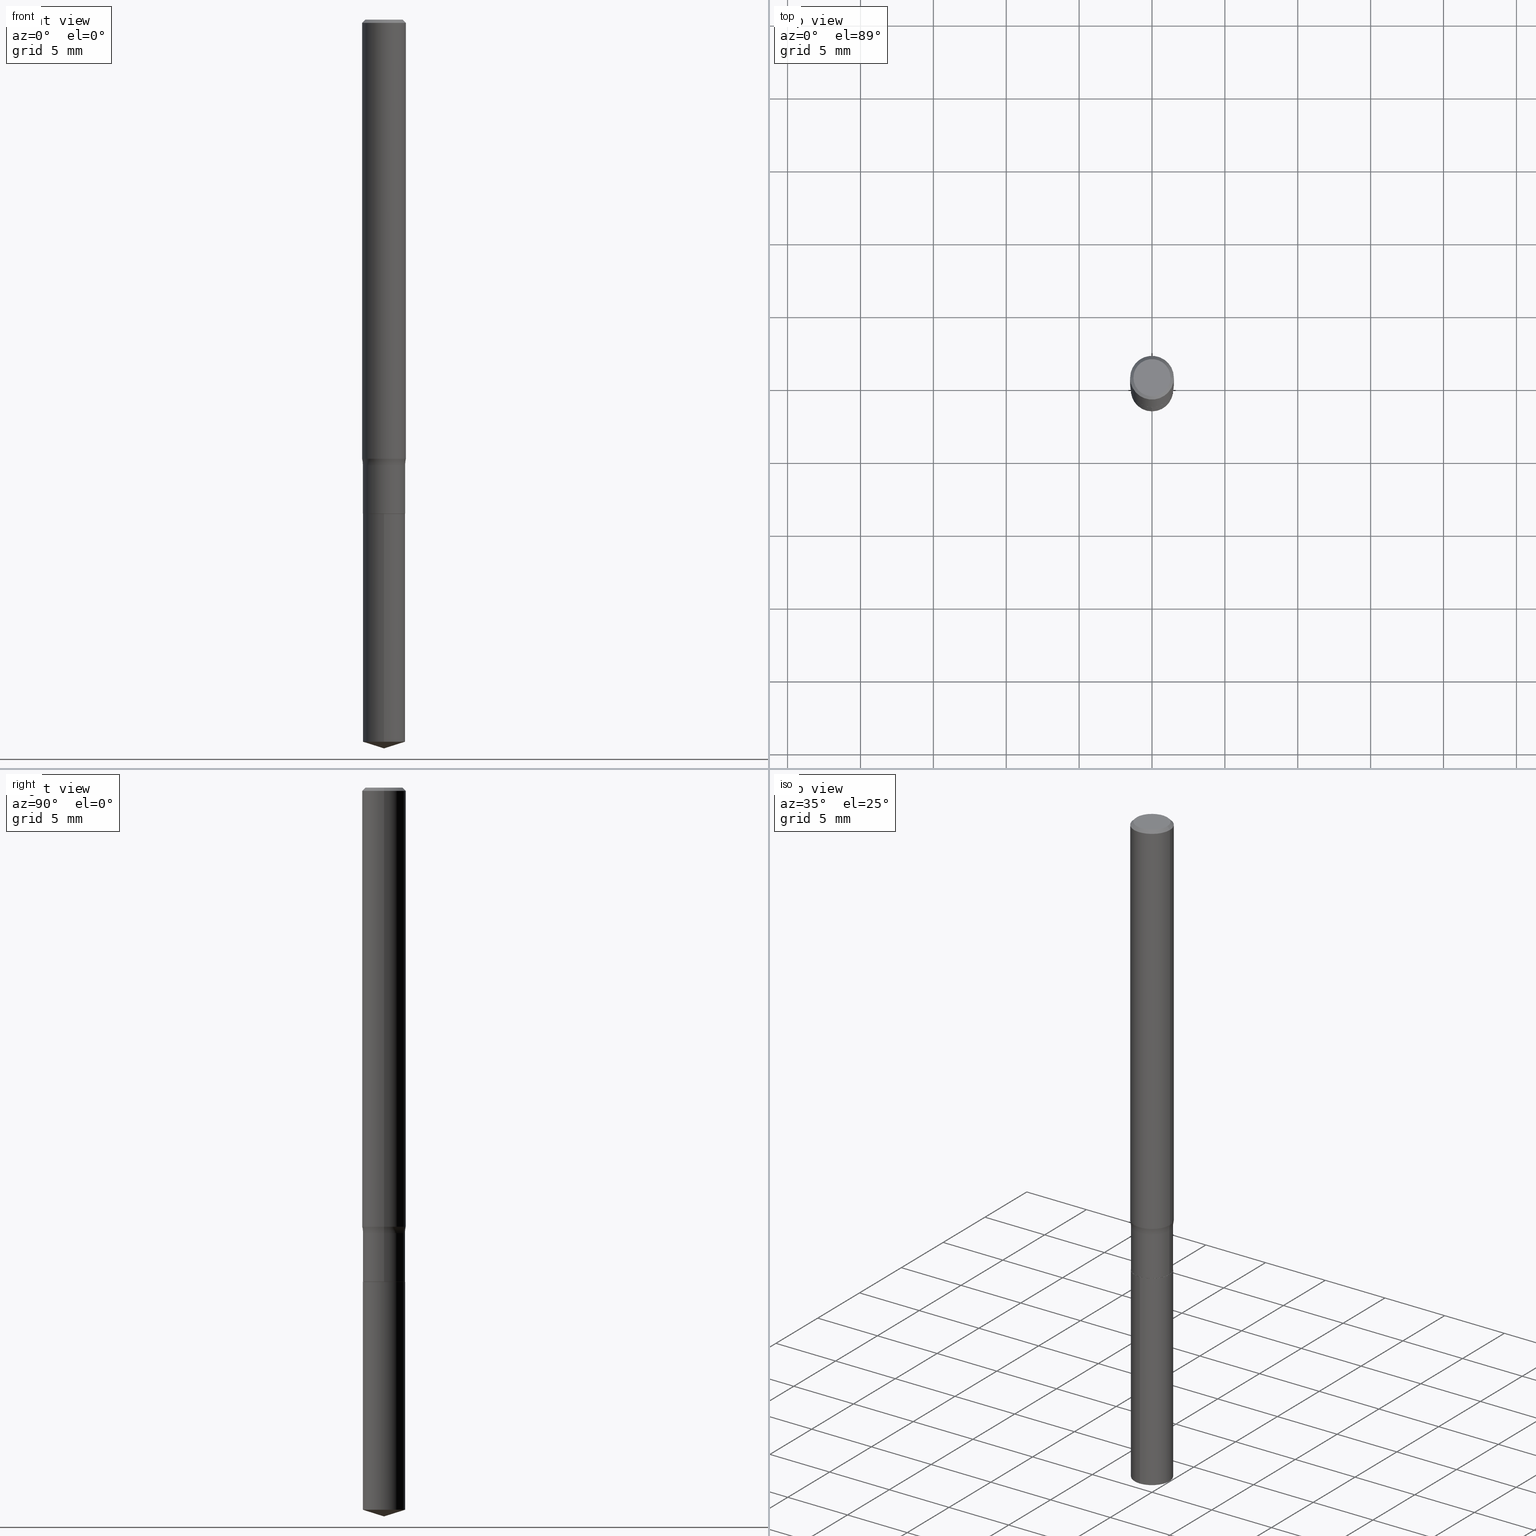
[diagram: canonical four-view strip — front | top / right | iso, engineering-drawing reading convention]
A machine part, canonical four-view strip (front | top / right | iso — engineering-drawing reading convention). The complete STEP part file that produces these views, byte-faithful:
ISO-10303-21;
HEADER;
FILE_DESCRIPTION (( 'STEP AP203' ),
    '1' );
FILE_NAME ('64532.STEP',
    '2024-04-19T15:48:34',
    ( '' ),
    ( '' ),
    'SwSTEP 2.0',
    'SolidWorks 2023',
    '' );
FILE_SCHEMA (( 'CONFIG_CONTROL_DESIGN' ));
ENDSEC;

DATA;
#1 = DIRECTION ( 'NONE',  ( 1.000000000000000000, -6.982962677686271444E-15, 0.000000000000000000 ) ) ;
#2 = MANIFOLD_SOLID_BREP ( 'Body-Move/Copy2[2]', #317 ) ;
#3 = VERTEX_POINT ( 'NONE', #91 ) ;
#4 = DIRECTION ( 'NONE',  ( -2.445468806185136597E-29, 3.491481338843145583E-15, 1.000000000000000000 ) ) ;
#5 = CARTESIAN_POINT ( 'NONE',  ( 3.262744481212208605E-29, -4.658334402284523139E-15, -1.334199999999999608 ) ) ;
#6 = ORIENTED_EDGE ( 'NONE', *, *, #129, .T. ) ;
#7 = AXIS2_PLACEMENT_3D ( 'NONE', #190, #169, #411 ) ;
#8 = CARTESIAN_POINT ( 'NONE',  ( 3.263967215615300846E-29, -4.660080142953945431E-15, -1.334699999999999775 ) ) ;
#9 = EDGE_CURVE ( 'NONE', #193, #35, #310, .T. ) ;
#10 = MANIFOLD_SOLID_BREP ( 'Body-Move/Copy2[1]', #31 ) ;
#11 = COORDINATED_UNIVERSAL_TIME_OFFSET ( 5, 0, .BEHIND. ) ;
#12 = ORIENTED_EDGE ( 'NONE', *, *, #107, .F. ) ;
#13 = EDGE_CURVE ( 'NONE', #257, #403, #395, .T. ) ;
#14 = CIRCLE ( 'NONE', #482, 0.05904999999999999832 ) ;
#15 = CIRCLE ( 'NONE', #161, 0.05659999999999999060 ) ;
#16 = PERSON_AND_ORGANIZATION ( #55, #329 ) ;
#17 = EDGE_LOOP ( 'NONE', ( #479, #110, #386, #431 ) ) ;
#18 = CARTESIAN_POINT ( 'NONE',  ( -3.987271688958379871E-16, -0.05710000000000679116, -1.950496439155009920 ) ) ;
#19 = CONICAL_SURFACE ( 'NONE', #371, 0.05904999999999999832, 0.7853981633974449483 ) ;
#20 = AXIS2_PLACEMENT_3D ( 'NONE', #133, #447, #210 ) ;
#21 = CARTESIAN_POINT ( 'NONE',  ( 4.057199021190649179E-16, 0.05709999999999533504, -1.334699999999999998 ) ) ;
#22 = PLANE ( 'NONE',  #484 ) ;
#23 = FACE_OUTER_BOUND ( 'NONE', #126, .T. ) ;
#24 = CARTESIAN_POINT ( 'NONE',  ( 0.05019250000000000100, -3.901918742401799672E-16, -3.591276738473711219E-19 ) ) ;
#25 = FACE_OUTER_BOUND ( 'NONE', #168, .T. ) ;
#26 = ORIENTED_EDGE ( 'NONE', *, *, #159, .F. ) ;
#27 = DIRECTION ( 'NONE',  ( -2.445468806185136877E-29, 3.491481338843145188E-15, 1.000000000000000000 ) ) ;
#28 = VERTEX_POINT ( 'NONE', #134 ) ;
#29 = DIRECTION ( 'NONE',  ( -2.445468806185136597E-29, 3.491481338843145583E-15, 1.000000000000000000 ) ) ;
#30 = EDGE_CURVE ( 'NONE', #460, #367, #204, .T. ) ;
#31 = CLOSED_SHELL ( 'NONE', ( #292, #195, #189, #390, #424 ) ) ;
#32 = AXIS2_PLACEMENT_3D ( 'NONE', #33, #178, #376 ) ;
#33 = CARTESIAN_POINT ( 'NONE',  ( 3.263967215615300286E-29, -4.660080142953944642E-15, -1.334699999999999553 ) ) ;
#34 = APPROVAL_PERSON_ORGANIZATION ( #217, #421, #49 ) ;
#35 = VERTEX_POINT ( 'NONE', #442 ) ;
#36 = FACE_OUTER_BOUND ( 'NONE', #457, .T. ) ;
#37 = DIRECTION ( 'NONE',  ( -2.445496028877088501E-29, 3.491442354398851072E-15, 1.000000000000000000 ) ) ;
#38 = VERTEX_POINT ( 'NONE', #21 ) ;
#39 = MECHANICAL_CONTEXT ( 'NONE', #191, 'mechanical' ) ;
#40 = ORIENTED_EDGE ( 'NONE', *, *, #48, .T. ) ;
#41 = EDGE_CURVE ( 'NONE', #250, #35, #97, .T. ) ;
#42 = AXIS2_PLACEMENT_3D ( 'NONE', #265, #72, #158 ) ;
#43 = CC_DESIGN_DATE_AND_TIME_ASSIGNMENT ( #384, #323, ( #406 ) ) ;
#44 = DIRECTION ( 'NONE',  ( 1.000000000000000000, -6.982962677686269866E-15, 0.000000000000000000 ) ) ;
#45 = CARTESIAN_POINT ( 'NONE',  ( -0.05905000000000007465, 4.195754854663396902E-16, -2.904631170795525395E-30 ) ) ;
#46 = DIRECTION ( 'NONE',  ( -0.7071067811865451302, 2.468850131082231817E-15, -0.7071067811865499042 ) ) ;
#47 =( NAMED_UNIT ( * ) PLANE_ANGLE_UNIT ( ) SI_UNIT ( $, .RADIAN. ) );
#48 = EDGE_CURVE ( 'NONE', #343, #490, #174, .T. ) ;
#49 = APPROVAL_ROLE ( '' ) ;
#50 = ORIENTED_EDGE ( 'NONE', *, *, #166, .T. ) ;
#51 = CIRCLE ( 'NONE', #114, 0.05905000000000015098 ) ;
#52 = LOCAL_TIME ( 11, 48, 34.00000000000000000, #11 ) ;
#53 = PERSON_AND_ORGANIZATION ( #55, #329 ) ;
#54 = ORIENTED_EDGE ( 'NONE', *, *, #166, .F. ) ;
#55 = PERSON ( 'UNSPECIFIED', 'UNSPECIFIED', 'UNSPECIFIED', ('UNSPECIFIED'), ('UNSPECIFIED'), ('UNSPECIFIED') ) ;
#56 = COORDINATED_UNIVERSAL_TIME_OFFSET ( 5, 0, .BEHIND. ) ;
#57 = ORIENTED_EDGE ( 'NONE', *, *, #282, .T. ) ;
#58 = EDGE_CURVE ( 'NONE', #198, #3, #131, .T. ) ;
#59 = CARTESIAN_POINT ( 'NONE',  ( 8.782355238379090331E-48, -1.253887571509286098E-33, -3.591276738499609681E-19 ) ) ;
#60 = VECTOR ( 'NONE', #138, 39.37007874015748854 ) ;
#61 = AXIS2_PLACEMENT_3D ( 'NONE', #298, #102, #258 ) ;
#62 = CARTESIAN_POINT ( 'NONE',  ( 3.263967215615300846E-29, -4.660080142953945431E-15, -1.334699999999999775 ) ) ;
#63 = DIRECTION ( 'NONE',  ( -2.445468806185136877E-29, 3.491481338843145188E-15, 1.000000000000000000 ) ) ;
#64 = EDGE_CURVE ( 'NONE', #28, #460, #319, .T. ) ;
#65 = CALENDAR_DATE ( 2024, 19, 4 ) ;
#66 = AXIS2_PLACEMENT_3D ( 'NONE', #118, #81, #1 ) ;
#67 = LINE ( 'NONE', #222, #405 ) ;
#68 = CARTESIAN_POINT ( 'NONE',  ( -0.1350999999999999701, -3.241705407151946692E-15, -1.203400000000000025 ) ) ;
#69 = ORIENTED_EDGE ( 'NONE', *, *, #151, .T. ) ;
#70 = ADVANCED_FACE ( 'NONE', ( #77 ), #106, .T. ) ;
#71 = DIRECTION ( 'NONE',  ( -0.7071067811866138531, 7.493145998870593974E-15, 0.7071067811864811814 ) ) ;
#72 = DIRECTION ( 'NONE',  ( 2.445468806185136597E-29, -3.491481338843145583E-15, -1.000000000000000000 ) ) ;
#73 = VECTOR ( 'NONE', #197, 39.37007874015748143 ) ;
#74 = CYLINDRICAL_SURFACE ( 'NONE', #294, 0.05905000000000007465 ) ;
#75 = LOCAL_TIME ( 11, 48, 34.00000000000000000, #130 ) ;
#76 = CC_DESIGN_DATE_AND_TIME_ASSIGNMENT ( #244, #128, ( #207 ) ) ;
#77 = FACE_OUTER_BOUND ( 'NONE', #177, .T. ) ;
#78 = ORIENTED_EDGE ( 'NONE', *, *, #463, .T. ) ;
#79 = ORIENTED_EDGE ( 'NONE', *, *, #377, .F. ) ;
#80 = ORIENTED_EDGE ( 'NONE', *, *, #227, .F. ) ;
#81 = DIRECTION ( 'NONE',  ( -2.445468806185136597E-29, 3.491481338843145583E-15, 1.000000000000000000 ) ) ;
#82 = ORIENTED_EDGE ( 'NONE', *, *, #368, .T. ) ;
#83 = CONICAL_SURFACE ( 'NONE', #434, 0.05659999999999999060, 0.7853981633975420928 ) ;
#84 = DIRECTION ( 'NONE',  ( -6.982962677686266711E-15, -1.000000000000000000, 3.491481338843145583E-15 ) ) ;
#85 = ADVANCED_FACE ( 'NONE', ( #109 ), #74, .T. ) ;
#86 = DIRECTION ( 'NONE',  ( 1.000000000000000000, -6.982962677686269077E-15, 0.000000000000000000 ) ) ;
#87 = DIRECTION ( 'NONE',  ( -6.982962677686265133E-15, -1.000000000000000000, 4.784322230585399479E-15 ) ) ;
#88 = EDGE_LOOP ( 'NONE', ( #365, #221, #238, #429 ) ) ;
#89 = LOCAL_TIME ( 11, 48, 34.00000000000000000, #286 ) ;
#90 = DIRECTION ( 'NONE',  ( -2.445496028877088781E-29, 3.491442354398851072E-15, 1.000000000000000000 ) ) ;
#91 = CARTESIAN_POINT ( 'NONE',  ( -3.987271688958531234E-16, -0.05710000000000465398, -1.334699999999999553 ) ) ;
#92 = PERSON_AND_ORGANIZATION ( #55, #329 ) ;
#93 = CONICAL_SURFACE ( 'NONE', #32, 0.05659999999999999060, 0.7853981633975420928 ) ;
#94 = AXIS2_PLACEMENT_3D ( 'NONE', #394, #84, #44 ) ;
#95 = APPROVAL_STATUS ( 'not_yet_approved' ) ;
#96 = PERSON_AND_ORGANIZATION_ROLE ( 'creator' ) ;
#97 = LINE ( 'NONE', #253, #451 ) ;
#98 = EDGE_CURVE ( 'NONE', #403, #257, #122, .T. ) ;
#99 = PERSON_AND_ORGANIZATION ( #55, #329 ) ;
#100 = EDGE_LOOP ( 'NONE', ( #80, #469, #440, #226 ) ) ;
#101 = EDGE_LOOP ( 'NONE', ( #202, #350, #276, #115 ) ) ;
#102 = DIRECTION ( 'NONE',  ( -2.438088387897960049E-29, 3.491481338843145188E-15, 1.000000000000000000 ) ) ;
#103 = CARTESIAN_POINT ( 'NONE',  ( 0.000000000000000000, 0.000000000000000000, 0.000000000000000000 ) ) ;
#104 = CARTESIAN_POINT ( 'NONE',  ( 2.942877161363193285E-29, -4.201648643163841239E-15, -1.203400000000000025 ) ) ;
#105 = APPROVAL_PERSON_ORGANIZATION ( #53, #272, #360 ) ;
#106 = CYLINDRICAL_SURFACE ( 'NONE', #171, 0.05709999999999997716 ) ;
#107 = EDGE_CURVE ( 'NONE', #35, #354, #67, .T. ) ;
#108 = CARTESIAN_POINT ( 'NONE',  ( 0.000000000000000000, 0.000000000000000000, 0.000000000000000000 ) ) ;
#109 = FACE_OUTER_BOUND ( 'NONE', #100, .T. ) ;
#110 = ORIENTED_EDGE ( 'NONE', *, *, #214, .T. ) ;
#111 = DIRECTION ( 'NONE',  ( 1.000000000000000000, -6.982962677686269077E-15, 0.000000000000000000 ) ) ;
#112 = DESIGN_CONTEXT ( 'detailed design', #180, 'design' ) ;
#113 = DIRECTION ( 'NONE',  ( 1.000000000000000000, -6.982962677686265922E-15, 4.883557194083112901E-29 ) ) ;
#114 = AXIS2_PLACEMENT_3D ( 'NONE', #121, #311, #240 ) ;
#115 = ORIENTED_EDGE ( 'NONE', *, *, #328, .F. ) ;
#116 = ORIENTED_EDGE ( 'NONE', *, *, #98, .T. ) ;
#117 = EDGE_LOOP ( 'NONE', ( #380, #69, #362, #262 ) ) ;
#118 = CARTESIAN_POINT ( 'NONE',  ( 2.942877161363193285E-29, -4.201648643163841239E-15, -1.203400000000000025 ) ) ;
#119 = DIRECTION ( 'NONE',  ( 1.000000000000000000, -6.982962677686266711E-15, 0.000000000000000000 ) ) ;
#120 = CARTESIAN_POINT ( 'NONE',  ( 4.769894962165531055E-29, -6.810097912307744286E-15, -1.950496439155010142 ) ) ;
#121 = CARTESIAN_POINT ( 'NONE',  ( 2.900492347091025857E-29, -4.141134361522908113E-15, -1.186068020886233754 ) ) ;
#122 = CIRCLE ( 'NONE', #251, 0.05019250000000000100 ) ;
#123 = APPROVAL ( #167, 'UNSPECIFIED' ) ;
#124 = LOCAL_TIME ( 11, 48, 34.00000000000000000, #56 ) ;
#125 = AXIS2_PLACEMENT_3D ( 'NONE', #269, #229, #391 ) ;
#126 = EDGE_LOOP ( 'NONE', ( #283, #116 ) ) ;
#127 = FACE_OUTER_BOUND ( 'NONE', #345, .T. ) ;
#128 = DATE_TIME_ROLE ( 'creation_date' ) ;
#129 = EDGE_CURVE ( 'NONE', #38, #3, #400, .T. ) ;
#130 = COORDINATED_UNIVERSAL_TIME_OFFSET ( 5, 0, .BEHIND. ) ;
#131 = LINE ( 'NONE', #280, #132 ) ;
#132 = VECTOR ( 'NONE', #90, 39.37007874015748143 ) ;
#133 = CARTESIAN_POINT ( 'NONE',  ( 0.000000000000000000, 0.000000000000000000, 0.000000000000000000 ) ) ;
#134 = CARTESIAN_POINT ( 'NONE',  ( -0.05905000000000015098, -3.721558876056567831E-15, -1.186068020886233754 ) ) ;
#135 = ADVANCED_FACE ( 'NONE', ( #219 ), #93, .T. ) ;
#136 = AXIS2_PLACEMENT_3D ( 'NONE', #225, #37, #185 ) ;
#137 =( LENGTH_UNIT ( ) NAMED_UNIT ( * ) SI_UNIT ( $, .METRE. ) );
#138 = DIRECTION ( 'NONE',  ( 6.776566513254254982E-15, 0.9537169507482283759, 0.3007057995042682341 ) ) ;
#139 = FACE_OUTER_BOUND ( 'NONE', #302, .T. ) ;
#140 = PERSON_AND_ORGANIZATION ( #55, #329 ) ;
#141 = FACE_OUTER_BOUND ( 'NONE', #17, .T. ) ;
#142 = ADVANCED_FACE ( 'NONE', ( #23 ), #181, .F. ) ;
#143 = AXIS2_PLACEMENT_3D ( 'NONE', #481, #264, #389 ) ;
#144 =( GEOMETRIC_REPRESENTATION_CONTEXT ( 3 ) GLOBAL_UNCERTAINTY_ASSIGNED_CONTEXT ( ( #285 ) ) GLOBAL_UNIT_ASSIGNED_CONTEXT ( ( #334, #47, #437 ) ) REPRESENTATION_CONTEXT ( 'NONE', 'WORKASPACE' ) );
#145 = DIRECTION ( 'NONE',  ( -6.982962677686265133E-15, -1.000000000000000000, 4.784322230585399479E-15 ) ) ;
#146 = DIRECTION ( 'NONE',  ( -1.000000000000000000, 7.105427357600997126E-15, 0.000000000000000000 ) ) ;
#147 = EDGE_LOOP ( 'NONE', ( #393, #40, #246 ) ) ;
#148 = DIRECTION ( 'NONE',  ( -2.445468806185136597E-29, 3.491481338843145583E-15, 1.000000000000000000 ) ) ;
#149 = CARTESIAN_POINT ( 'NONE',  ( -0.05709999999999997716, 4.057199021190170439E-16, -2.808711936535549889E-30 ) ) ;
#150 = DIRECTION ( 'NONE',  ( 1.000000000000000000, -6.982962677686266711E-15, 4.876176775795935793E-29 ) ) ;
#151 = EDGE_CURVE ( 'NONE', #233, #193, #297, .T. ) ;
#152 = CIRCLE ( 'NONE', #245, 0.05709999999999997022 ) ;
#153 = DIRECTION ( 'NONE',  ( -6.982962677686266711E-15, -1.000000000000000000, 3.500519750498718631E-15 ) ) ;
#154 = CIRCLE ( 'NONE', #228, 0.07800000000000001377 ) ;
#155 = ORIENTED_EDGE ( 'NONE', *, *, #256, .T. ) ;
#156 = DIRECTION ( 'NONE',  ( -1.000000000000000000, 6.982962677686266711E-15, 0.000000000000000000 ) ) ;
#157 = DIRECTION ( 'NONE',  ( -2.445496028877088501E-29, 3.491442354398851072E-15, 1.000000000000000000 ) ) ;
#158 = DIRECTION ( 'NONE',  ( -1.000000000000000000, 6.982962677686266711E-15, 0.000000000000000000 ) ) ;
#159 = EDGE_CURVE ( 'NONE', #490, #198, #160, .T. ) ;
#160 = CIRCLE ( 'NONE', #136, 0.05709999999999999798 ) ;
#161 = AXIS2_PLACEMENT_3D ( 'NONE', #355, #4, #86 ) ;
#162 = DIRECTION ( 'NONE',  ( 2.445468806185136597E-29, -3.491481338843145583E-15, -1.000000000000000000 ) ) ;
#163 = CC_DESIGN_PERSON_AND_ORGANIZATION_ASSIGNMENT ( #321, #363, ( #194 ) ) ;
#164 = AXIS2_PLACEMENT_3D ( 'NONE', #344, #454, #111 ) ;
#165 = CARTESIAN_POINT ( 'NONE',  ( 0.05905000000000007465, -4.123439461173745750E-16, 2.879382386107504074E-30 ) ) ;
#166 = EDGE_CURVE ( 'NONE', #233, #250, #415, .T. ) ;
#167 = APPROVAL_STATUS ( 'not_yet_approved' ) ;
#168 = EDGE_LOOP ( 'NONE', ( #435, #273, #82, #339 ) ) ;
#169 = DIRECTION ( 'NONE',  ( -2.445496028877088501E-29, 3.491442354398851072E-15, 1.000000000000000000 ) ) ;
#170 = DIRECTION ( 'NONE',  ( 1.000000000000000000, -6.982962677686269077E-15, 0.000000000000000000 ) ) ;
#171 = AXIS2_PLACEMENT_3D ( 'NONE', #103, #486, #150 ) ;
#172 = PRODUCT_DEFINITION_FORMATION_WITH_SPECIFIED_SOURCE ( 'ANY', '', #194, .NOT_KNOWN. ) ;
#173 = DIRECTION ( 'NONE',  ( -2.445496028877088501E-29, 3.491442354398851072E-15, 1.000000000000000000 ) ) ;
#174 = LINE ( 'NONE', #369, #60 ) ;
#175 = CC_DESIGN_PERSON_AND_ORGANIZATION_ASSIGNMENT ( #99, #332, ( #172 ) ) ;
#176 = FACE_OUTER_BOUND ( 'NONE', #412, .T. ) ;
#177 = EDGE_LOOP ( 'NONE', ( #57, #78, #382, #12 ) ) ;
#178 = DIRECTION ( 'NONE',  ( -2.445468806185136597E-29, 3.491481338843145583E-15, 1.000000000000000000 ) ) ;
#179 = CARTESIAN_POINT ( 'NONE',  ( -0.05904999999999999832, -1.666454593274514930E-15, -0.008857500000000059770 ) ) ;
#180 = APPLICATION_CONTEXT ( 'configuration controlled 3d designs of mechanical parts and assemblies' ) ;
#181 = PLANE ( 'NONE',  #143 ) ;
#182 = CARTESIAN_POINT ( 'NONE',  ( 3.263967215615300846E-29, -4.660080142953945431E-15, -1.334699999999999775 ) ) ;
#183 = VECTOR ( 'NONE', #63, 39.37007874015748143 ) ;
#184 = CIRCLE ( 'NONE', #372, 0.05709999999999999798 ) ;
#185 = DIRECTION ( 'NONE',  ( -6.982962677686265133E-15, -1.000000000000000000, 4.784322230585399479E-15 ) ) ;
#186 = EDGE_LOOP ( 'NONE', ( #223, #6 ) ) ;
#187 = LINE ( 'NONE', #149, #342 ) ;
#188 = CARTESIAN_POINT ( 'NONE',  ( 3.263967215615300846E-29, -4.660080142953945431E-15, -1.334699999999999775 ) ) ;
#189 = ADVANCED_FACE ( 'NONE', ( #346 ), #260, .T. ) ;
#190 = CARTESIAN_POINT ( 'NONE',  ( -9.146544861691581560E-28, 1.305854041022316491E-13, 37.40157874015748263 ) ) ;
#191 = APPLICATION_CONTEXT ( 'configuration controlled 3d designs of mechanical parts and assemblies' ) ;
#192 = CONICAL_SURFACE ( 'NONE', #7, 124.8659371009145644, 1.265363707695890572 ) ;
#193 = VERTEX_POINT ( 'NONE', #459 ) ;
#194 = PRODUCT ( '64532', '64532', '', ( #39 ) ) ;
#195 = ADVANCED_FACE ( 'NONE', ( #491 ), #192, .T. ) ;
#196 = LINE ( 'NONE', #398, #275 ) ;
#197 = DIRECTION ( 'NONE',  ( -6.659769872151629722E-15, -0.9537169507482263775, 0.3007057995042748955 ) ) ;
#198 = VERTEX_POINT ( 'NONE', #18 ) ;
#199 = FACE_OUTER_BOUND ( 'NONE', #88, .T. ) ;
#200 = VECTOR ( 'NONE', #232, 39.37007874015748143 ) ;
#201 = ADVANCED_FACE ( 'NONE', ( #141 ), #470, .T. ) ;
#202 = ORIENTED_EDGE ( 'NONE', *, *, #463, .F. ) ;
#203 = CALENDAR_DATE ( 2024, 19, 4 ) ;
#204 = LINE ( 'NONE', #165, #183 ) ;
#205 = AXIS2_PLACEMENT_3D ( 'NONE', #62, #374, #336 ) ;
#206 = TOROIDAL_SURFACE ( 'NONE', #281, 0.1350999999999999701, 0.07799999999999999989 ) ;
#207 = PRODUCT_DEFINITION ( 'UNKNOWN', '', #172, #112 ) ;
#208 = DIRECTION ( 'NONE',  ( -6.982962677686265133E-15, -1.000000000000000000, 4.784322230585399479E-15 ) ) ;
#209 = APPLICATION_PROTOCOL_DEFINITION ( 'international standard', 'config_control_design', 1994, #180 ) ;
#210 = DIRECTION ( 'NONE',  ( 1.000000000000000000, -6.982962677686266711E-15, 4.876176775795935793E-29 ) ) ;
#211 = CALENDAR_DATE ( 2024, 19, 4 ) ;
#212 = DIRECTION ( 'NONE',  ( 0.7071067811866138531, -2.468850131082952047E-15, 0.7071067811864811814 ) ) ;
#213 = DIRECTION ( 'NONE',  ( -2.445468806185136597E-29, 3.491481338843145583E-15, 1.000000000000000000 ) ) ;
#214 = EDGE_CURVE ( 'NONE', #403, #367, #308, .T. ) ;
#215 = DIRECTION ( 'NONE',  ( -2.445468806185136877E-29, 3.491481338843145188E-15, 1.000000000000000000 ) ) ;
#216 = AXIS2_PLACEMENT_3D ( 'NONE', #236, #436, #307 ) ;
#217 = PERSON_AND_ORGANIZATION ( #55, #329 ) ;
#218 = LENGTH_MEASURE_WITH_UNIT ( LENGTH_MEASURE( 0.02539999999999999897 ), #137 );
#219 = FACE_OUTER_BOUND ( 'NONE', #117, .T. ) ;
#220 = CC_DESIGN_PERSON_AND_ORGANIZATION_ASSIGNMENT ( #254, #330, ( #406 ) ) ;
#221 = ORIENTED_EDGE ( 'NONE', *, *, #159, .T. ) ;
#222 = CARTESIAN_POINT ( 'NONE',  ( 0.05709999999999997716, -3.987271688958856639E-16, 2.784296938979478177E-30 ) ) ;
#223 = ORIENTED_EDGE ( 'NONE', *, *, #474, .T. ) ;
#224 = DIRECTION ( 'NONE',  ( 1.000000000000000000, -6.982962677686266711E-15, 4.876176775795936353E-29 ) ) ;
#225 = CARTESIAN_POINT ( 'NONE',  ( 4.769894962165531055E-29, -6.810097912307744286E-15, -1.950496439155010142 ) ) ;
#226 = ORIENTED_EDGE ( 'NONE', *, *, #304, .F. ) ;
#227 = EDGE_CURVE ( 'NONE', #28, #420, #464, .T. ) ;
#228 = AXIS2_PLACEMENT_3D ( 'NONE', #68, #448, #146 ) ;
#229 = DIRECTION ( 'NONE',  ( 0.000000000000000000, 0.000000000000000000, 1.000000000000000000 ) ) ;
#230 = ORIENTED_EDGE ( 'NONE', *, *, #243, .T. ) ;
#231 = CARTESIAN_POINT ( 'NONE',  ( 2.166073995078499248E-31, -3.092579595880337046E-17, -0.008857500000000059770 ) ) ;
#232 = DIRECTION ( 'NONE',  ( -2.445496028877088781E-29, 3.491442354398851072E-15, 1.000000000000000000 ) ) ;
#233 = VERTEX_POINT ( 'NONE', #348 ) ;
#234 = EDGE_CURVE ( 'NONE', #343, #198, #305, .T. ) ;
#235 = ORIENTED_EDGE ( 'NONE', *, *, #357, .F. ) ;
#236 = CARTESIAN_POINT ( 'NONE',  ( 2.942877161363193285E-29, -4.201648643163841239E-15, -1.203400000000000025 ) ) ;
#237 = CIRCLE ( 'NONE', #432, 0.05709999999999998410 ) ;
#238 = ORIENTED_EDGE ( 'NONE', *, *, #58, .T. ) ;
#239 = CARTESIAN_POINT ( 'NONE',  ( 0.05904999999999999832, -4.432697420761774278E-16, -0.008857500000000059770 ) ) ;
#240 = DIRECTION ( 'NONE',  ( 1.000000000000000000, -6.982962677686271444E-15, 0.000000000000000000 ) ) ;
#241 = CARTESIAN_POINT ( 'NONE',  ( 0.05709999999999997022, -4.600375812059727642E-15, -1.203400000000000025 ) ) ;
#242 = ORIENTED_EDGE ( 'NONE', *, *, #64, .F. ) ;
#243 = EDGE_CURVE ( 'NONE', #490, #38, #455, .T. ) ;
#244 = DATE_AND_TIME ( #211, #124 ) ;
#245 = AXIS2_PLACEMENT_3D ( 'NONE', #427, #351, #467 ) ;
#246 = ORIENTED_EDGE ( 'NONE', *, *, #361, .F. ) ;
#247 = CIRCLE ( 'NONE', #288, 0.05709999999999999798 ) ;
#248 = ORIENTED_EDGE ( 'NONE', *, *, #48, .F. ) ;
#249 = EDGE_CURVE ( 'NONE', #367, #420, #477, .T. ) ;
#250 = VERTEX_POINT ( 'NONE', #268 ) ;
#251 = AXIS2_PLACEMENT_3D ( 'NONE', #419, #148, #381 ) ;
#252 = LOCAL_TIME ( 11, 48, 34.00000000000000000, #296 ) ;
#253 = CARTESIAN_POINT ( 'NONE',  ( 0.05659999999999999060, -5.055315830510987250E-15, -1.334699999999999553 ) ) ;
#254 = PERSON_AND_ORGANIZATION ( #55, #329 ) ;
#255 = ORIENTED_EDGE ( 'NONE', *, *, #347, .T. ) ;
#256 = EDGE_CURVE ( 'NONE', #460, #28, #51, .T. ) ;
#257 = VERTEX_POINT ( 'NONE', #399 ) ;
#258 = DIRECTION ( 'NONE',  ( 1.000000000000000000, -6.982962677686265922E-15, 4.876176775795935793E-29 ) ) ;
#259 = CYLINDRICAL_SURFACE ( 'NONE', #20, 0.05709999999999997716 ) ;
#260 = CONICAL_SURFACE ( 'NONE', #387, 124.8659371009145644, 1.265363707695890572 ) ;
#261 = DIRECTION ( 'NONE',  ( 1.000000000000000000, -6.982962677686266711E-15, 4.876176775795936353E-29 ) ) ;
#262 = ORIENTED_EDGE ( 'NONE', *, *, #41, .F. ) ;
#263 = DIRECTION ( 'NONE',  ( -2.445468806185136597E-29, 3.491481338843145583E-15, 1.000000000000000000 ) ) ;
#264 = DIRECTION ( 'NONE',  ( 2.438088387897960049E-29, -3.491481338843145188E-15, -1.000000000000000000 ) ) ;
#265 = CARTESIAN_POINT ( 'NONE',  ( 2.166073995078499248E-31, -3.092579595880337046E-17, -0.008857500000000059770 ) ) ;
#266 = PRODUCT_RELATED_PRODUCT_CATEGORY ( 'detail', '', ( #194 ) ) ;
#267 = AXIS2_PLACEMENT_3D ( 'NONE', #458, #428, #119 ) ;
#268 = CARTESIAN_POINT ( 'NONE',  ( 0.05659999999999999060, -5.055315830510987250E-15, -1.334699999999999553 ) ) ;
#269 = CARTESIAN_POINT ( 'NONE',  ( 0.000000000000000000, 0.000000000000000000, 0.000000000000000000 ) ) ;
#270 = ORIENTED_EDGE ( 'NONE', *, *, #249, .F. ) ;
#271 = CARTESIAN_POINT ( 'NONE',  ( 4.813886264590652584E-29, -6.873008339709738172E-15, -1.968500000000000139 ) ) ;
#272 = APPROVAL ( #318, 'UNSPECIFIED' ) ;
#273 = ORIENTED_EDGE ( 'NONE', *, *, #13, .F. ) ;
#274 = CARTESIAN_POINT ( 'NONE',  ( -0.05709999999999997022, -4.024271620605165884E-15, -1.203400000000000025 ) ) ;
#275 = VECTOR ( 'NONE', #46, 39.37007874015748143 ) ;
#276 = ORIENTED_EDGE ( 'NONE', *, *, #107, .T. ) ;
#277 = DIRECTION ( 'NONE',  ( 1.000000000000000000, -6.982962677686261189E-15, 0.000000000000000000 ) ) ;
#278 = CC_DESIGN_PERSON_AND_ORGANIZATION_ASSIGNMENT ( #92, #96, ( #207 ) ) ;
#279 = DIRECTION ( 'NONE',  ( -2.445496028877088501E-29, 3.491442354398851072E-15, 1.000000000000000000 ) ) ;
#280 = CARTESIAN_POINT ( 'NONE',  ( -3.987271688958531234E-16, -0.05710000000000465398, -1.334699999999999553 ) ) ;
#281 = AXIS2_PLACEMENT_3D ( 'NONE', #104, #485, #113 ) ;
#282 = EDGE_CURVE ( 'NONE', #35, #193, #237, .T. ) ;
#283 = ORIENTED_EDGE ( 'NONE', *, *, #13, .T. ) ;
#284 = CALENDAR_DATE ( 2024, 19, 4 ) ;
#285 = UNCERTAINTY_MEASURE_WITH_UNIT (LENGTH_MEASURE( 1.000000000000000082E-05 ), #334, 'distance_accuracy_value', 'NONE');
#286 = COORDINATED_UNIVERSAL_TIME_OFFSET ( 5, 0, .BEHIND. ) ;
#287 = VECTOR ( 'NONE', #433, 39.37007874015748143 ) ;
#288 = AXIS2_PLACEMENT_3D ( 'NONE', #182, #173, #208 ) ;
#289 = ORIENTED_EDGE ( 'NONE', *, *, #151, .F. ) ;
#290 = CARTESIAN_POINT ( 'NONE',  ( 3.262744481212208605E-29, -4.658334402284523139E-15, -1.334199999999999608 ) ) ;
#291 = DIRECTION ( 'NONE',  ( 2.445496028877088220E-29, -3.491442354398851072E-15, -1.000000000000000000 ) ) ;
#292 = ADVANCED_FACE ( 'NONE', ( #139 ), #378, .T. ) ;
#293 = PLANE ( 'NONE',  #61 ) ;
#294 = AXIS2_PLACEMENT_3D ( 'NONE', #425, #414, #261 ) ;
#295 = DIRECTION ( 'NONE',  ( -2.445468806185136597E-29, 3.491481338843145583E-15, 1.000000000000000000 ) ) ;
#296 = COORDINATED_UNIVERSAL_TIME_OFFSET ( 5, 0, .BEHIND. ) ;
#297 = LINE ( 'NONE', #452, #312 ) ;
#298 = CARTESIAN_POINT ( 'NONE',  ( 7.762423254075853712E-29, 1.781964940338796990E-15, -1.334699999999999775 ) ) ;
#299 = DIRECTION ( 'NONE',  ( -2.445496028877088501E-29, 3.491442354398851072E-15, 1.000000000000000000 ) ) ;
#300 = DIRECTION ( 'NONE',  ( -2.445468806185136877E-29, 3.491481338843145188E-15, 1.000000000000000000 ) ) ;
#301 = CARTESIAN_POINT ( 'NONE',  ( 2.900492347091025857E-29, -4.141134361522908113E-15, -1.186068020886233754 ) ) ;
#302 = EDGE_LOOP ( 'NONE', ( #327, #230, #488, #483 ) ) ;
#303 = DIMENSIONAL_EXPONENTS ( 1.000000000000000000, 0.000000000000000000, 0.000000000000000000, 0.000000000000000000, 0.000000000000000000, 0.000000000000000000, 0.000000000000000000 ) ;
#304 = EDGE_CURVE ( 'NONE', #420, #367, #14, .T. ) ;
#305 = LINE ( 'NONE', #271, #73 ) ;
#306 = DIRECTION ( 'NONE',  ( -2.445496028877088501E-29, 3.491442354398851072E-15, 1.000000000000000000 ) ) ;
#307 = DIRECTION ( 'NONE',  ( 1.000000000000000000, -6.982962677686265922E-15, 4.883557194083112901E-29 ) ) ;
#308 = LINE ( 'NONE', #462, #287 ) ;
#309 = PRODUCT_DEFINITION_SHAPE ( 'NONE', 'NONE',  #207 ) ;
#310 = CIRCLE ( 'NONE', #456, 0.05709999999999998410 ) ;
#311 = DIRECTION ( 'NONE',  ( -2.445468806185136597E-29, 3.491481338843145583E-15, 1.000000000000000000 ) ) ;
#312 = VECTOR ( 'NONE', #71, 39.37007874015748143 ) ;
#313 = CC_DESIGN_SECURITY_CLASSIFICATION ( #406, ( #172 ) ) ;
#314 = ADVANCED_FACE ( 'NONE', ( #25 ), #19, .T. ) ;
#315 = DIRECTION ( 'NONE',  ( -6.982962677686265133E-15, -1.000000000000000000, 4.784322230585399479E-15 ) ) ;
#316 = APPLICATION_PROTOCOL_DEFINITION ( 'international standard', 'config_control_design', 1994, #191 ) ;
#317 = CLOSED_SHELL ( 'NONE', ( #135, #201, #468, #338, #70, #487, #402, #85, #314, #142, #450, #397 ) ) ;
#318 = APPROVAL_STATUS ( 'not_yet_approved' ) ;
#319 = CIRCLE ( 'NONE', #364, 0.05905000000000015098 ) ;
#320 = ORIENTED_EDGE ( 'NONE', *, *, #41, .T. ) ;
#321 = PERSON_AND_ORGANIZATION ( #55, #329 ) ;
#322 = EDGE_LOOP ( 'NONE', ( #333, #445, #418, #255 ) ) ;
#323 = DATE_TIME_ROLE ( 'classification_date' ) ;
#324 = FACE_OUTER_BOUND ( 'NONE', #101, .T. ) ;
#325 = VERTEX_POINT ( 'NONE', #274 ) ;
#326 = SECURITY_CLASSIFICATION_LEVEL ( 'unclassified' ) ;
#327 = ORIENTED_EDGE ( 'NONE', *, *, #361, .T. ) ;
#328 = EDGE_CURVE ( 'NONE', #325, #354, #152, .T. ) ;
#329 = ORGANIZATION ( 'UNSPECIFIED', 'UNSPECIFIED', '' ) ;
#330 = PERSON_AND_ORGANIZATION_ROLE ( 'classification_officer' ) ;
#331 = CYLINDRICAL_SURFACE ( 'NONE', #353, 0.05905000000000007465 ) ;
#332 = PERSON_AND_ORGANIZATION_ROLE ( 'design_supplier' ) ;
#333 = ORIENTED_EDGE ( 'NONE', *, *, #430, .F. ) ;
#334 =( CONVERSION_BASED_UNIT ( 'INCH', #218 ) LENGTH_UNIT ( ) NAMED_UNIT ( #303 ) );
#335 = CARTESIAN_POINT ( 'NONE',  ( 3.263967215615300846E-29, -4.660080142953945431E-15, -1.334699999999999775 ) ) ;
#336 = DIRECTION ( 'NONE',  ( -6.982962677686265133E-15, -1.000000000000000000, 4.784322230585399479E-15 ) ) ;
#337 = APPROVAL_DATE_TIME ( #417, #272 ) ;
#338 = ADVANCED_FACE ( 'NONE', ( #127 ), #438, .F. ) ;
#339 = ORIENTED_EDGE ( 'NONE', *, *, #304, .T. ) ;
#340 = AXIS2_PLACEMENT_3D ( 'NONE', #59, #213, #370 ) ;
#341 = CC_DESIGN_APPROVAL ( #123, ( #207 ) ) ;
#342 = VECTOR ( 'NONE', #215, 39.37007874015748143 ) ;
#343 = VERTEX_POINT ( 'NONE', #461 ) ;
#344 = CARTESIAN_POINT ( 'NONE',  ( 3.263967215615300286E-29, -4.660080142953944642E-15, -1.334699999999999553 ) ) ;
#345 = EDGE_LOOP ( 'NONE', ( #242, #472, #408, #235 ) ) ;
#346 = FACE_OUTER_BOUND ( 'NONE', #480, .T. ) ;
#347 = EDGE_CURVE ( 'NONE', #354, #325, #492, .T. ) ;
#348 = CARTESIAN_POINT ( 'NONE',  ( -0.05659999999999999060, -4.255263727339616852E-15, -1.334699999999999553 ) ) ;
#349 = CARTESIAN_POINT ( 'NONE',  ( -9.146544861691581560E-28, 1.305854041022316491E-13, 37.40157874015748263 ) ) ;
#350 = ORIENTED_EDGE ( 'NONE', *, *, #9, .T. ) ;
#351 = DIRECTION ( 'NONE',  ( -2.445468806185136597E-29, 3.491481338843145583E-15, 1.000000000000000000 ) ) ;
#352 = AXIS2_PLACEMENT_3D ( 'NONE', #188, #299, #145 ) ;
#353 = AXIS2_PLACEMENT_3D ( 'NONE', #108, #263, #224 ) ;
#354 = VERTEX_POINT ( 'NONE', #241 ) ;
#355 = CARTESIAN_POINT ( 'NONE',  ( 3.263967215615300286E-29, -4.660080142953944642E-15, -1.334699999999999553 ) ) ;
#356 = CARTESIAN_POINT ( 'NONE',  ( 4.057199021190497323E-16, 0.05709999999999533504, -1.334699999999999998 ) ) ;
#357 = EDGE_CURVE ( 'NONE', #460, #354, #401, .T. ) ;
#358 = CYLINDRICAL_SURFACE ( 'NONE', #444, 0.05709999999999999798 ) ;
#359 = VECTOR ( 'NONE', #300, 39.37007874015748143 ) ;
#360 = APPROVAL_ROLE ( '' ) ;
#361 = EDGE_CURVE ( 'NONE', #198, #490, #184, .T. ) ;
#362 = ORIENTED_EDGE ( 'NONE', *, *, #282, .F. ) ;
#363 = PERSON_AND_ORGANIZATION_ROLE ( 'design_owner' ) ;
#364 = AXIS2_PLACEMENT_3D ( 'NONE', #301, #385, #422 ) ;
#365 = ORIENTED_EDGE ( 'NONE', *, *, #243, .F. ) ;
#366 = PERSON_AND_ORGANIZATION_ROLE ( 'creator' ) ;
#367 = VERTEX_POINT ( 'NONE', #239 ) ;
#368 = EDGE_CURVE ( 'NONE', #257, #420, #196, .T. ) ;
#369 = CARTESIAN_POINT ( 'NONE',  ( 4.813959570059357065E-29, -6.872904274634139069E-15, -1.968500000000000139 ) ) ;
#370 = DIRECTION ( 'NONE',  ( 1.000000000000000000, -6.982962677686266711E-15, 4.876140833081945105E-29 ) ) ;
#371 = AXIS2_PLACEMENT_3D ( 'NONE', #392, #162, #156 ) ;
#372 = AXIS2_PLACEMENT_3D ( 'NONE', #120, #157, #87 ) ;
#373 = FACE_OUTER_BOUND ( 'NONE', #186, .T. ) ;
#374 = DIRECTION ( 'NONE',  ( -2.445496028877088501E-29, 3.491442354398851072E-15, 1.000000000000000000 ) ) ;
#375 = DATE_AND_TIME ( #473, #52 ) ;
#376 = DIRECTION ( 'NONE',  ( 1.000000000000000000, -6.982962677686269077E-15, 0.000000000000000000 ) ) ;
#377 = EDGE_CURVE ( 'NONE', #250, #233, #15, .T. ) ;
#378 = CYLINDRICAL_SURFACE ( 'NONE', #205, 0.05709999999999999798 ) ;
#379 = DIRECTION ( 'NONE',  ( 1.000000000000000000, -6.982962677686266711E-15, 0.000000000000000000 ) ) ;
#380 = ORIENTED_EDGE ( 'NONE', *, *, #377, .T. ) ;
#381 = DIRECTION ( 'NONE',  ( 1.000000000000000000, -6.982962677686266711E-15, 4.876140833081945105E-29 ) ) ;
#382 = ORIENTED_EDGE ( 'NONE', *, *, #347, .F. ) ;
#383 = CARTESIAN_POINT ( 'NONE',  ( 3.263967215615300286E-29, -4.660080142953944642E-15, -1.334699999999999553 ) ) ;
#384 = DATE_AND_TIME ( #65, #252 ) ;
#385 = DIRECTION ( 'NONE',  ( -2.445468806185136597E-29, 3.491481338843145583E-15, 1.000000000000000000 ) ) ;
#386 = ORIENTED_EDGE ( 'NONE', *, *, #249, .T. ) ;
#387 = AXIS2_PLACEMENT_3D ( 'NONE', #349, #306, #153 ) ;
#388 = FACE_OUTER_BOUND ( 'NONE', #322, .T. ) ;
#389 = DIRECTION ( 'NONE',  ( -1.000000000000000000, 6.982962677686265922E-15, -4.876176775795935793E-29 ) ) ;
#390 = ADVANCED_FACE ( 'NONE', ( #199 ), #358, .T. ) ;
#391 = DIRECTION ( 'NONE',  ( 1.000000000000000000, 0.000000000000000000, 0.000000000000000000 ) ) ;
#392 = CARTESIAN_POINT ( 'NONE',  ( 2.166073995078499248E-31, -3.092579595880337046E-17, -0.008857500000000059770 ) ) ;
#393 = ORIENTED_EDGE ( 'NONE', *, *, #234, .F. ) ;
#394 = CARTESIAN_POINT ( 'NONE',  ( 0.1350999999999999701, -5.145046900919255689E-15, -1.203400000000000025 ) ) ;
#395 = CIRCLE ( 'NONE', #340, 0.05019250000000000100 ) ;
#396 = EDGE_LOOP ( 'NONE', ( #289, #50, #320, #453 ) ) ;
#397 = ADVANCED_FACE ( 'NONE', ( #489 ), #83, .T. ) ;
#398 = CARTESIAN_POINT ( 'NONE',  ( -0.05904999999999999832, 3.814181501585706376E-16, -0.008857500000000059770 ) ) ;
#399 = CARTESIAN_POINT ( 'NONE',  ( -0.05019250000000000100, 3.659552521791692358E-16, -3.591276738524661214E-19 ) ) ;
#400 = CIRCLE ( 'NONE', #352, 0.05709999999999999798 ) ;
#401 = CIRCLE ( 'NONE', #94, 0.07800000000000001377 ) ;
#402 = ADVANCED_FACE ( 'NONE', ( #388 ), #206, .F. ) ;
#403 = VERTEX_POINT ( 'NONE', #24 ) ;
#404 = DIRECTION ( 'NONE',  ( 1.000000000000000000, -6.982962677686261189E-15, 0.000000000000000000 ) ) ;
#405 = VECTOR ( 'NONE', #27, 39.37007874015748143 ) ;
#406 = SECURITY_CLASSIFICATION ( '', '', #326 ) ;
#407 = APPROVAL_DATE_TIME ( #375, #421 ) ;
#408 = ORIENTED_EDGE ( 'NONE', *, *, #328, .T. ) ;
#409 = CARTESIAN_POINT ( 'NONE',  ( 4.057199021190646713E-16, 0.05709999999999316317, -1.950496439155010586 ) ) ;
#410 = ORIENTED_EDGE ( 'NONE', *, *, #30, .F. ) ;
#411 = DIRECTION ( 'NONE',  ( -6.982962677686266711E-15, -1.000000000000000000, 3.500519750498718631E-15 ) ) ;
#412 = EDGE_LOOP ( 'NONE', ( #155, #446, #270, #410 ) ) ;
#413 = CARTESIAN_POINT ( 'NONE',  ( 0.05905000000000015098, -4.553478307640282244E-15, -1.186068020886233754 ) ) ;
#414 = DIRECTION ( 'NONE',  ( -2.445468806185136597E-29, 3.491481338843145583E-15, 1.000000000000000000 ) ) ;
#415 = CIRCLE ( 'NONE', #164, 0.05659999999999999060 ) ;
#416 = CC_DESIGN_APPROVAL ( #421, ( #406 ) ) ;
#417 = DATE_AND_TIME ( #203, #75 ) ;
#418 = ORIENTED_EDGE ( 'NONE', *, *, #357, .T. ) ;
#419 = CARTESIAN_POINT ( 'NONE',  ( 8.782355238379090331E-48, -1.253887571509286098E-33, -3.591276738499609681E-19 ) ) ;
#420 = VERTEX_POINT ( 'NONE', #179 ) ;
#421 = APPROVAL ( #95, 'UNSPECIFIED' ) ;
#422 = DIRECTION ( 'NONE',  ( 1.000000000000000000, -6.982962677686271444E-15, 0.000000000000000000 ) ) ;
#423 = DIRECTION ( 'NONE',  ( 6.982962677686265922E-15, 1.000000000000000000, -3.491442354398851072E-15 ) ) ;
#424 = ADVANCED_FACE ( 'NONE', ( #373 ), #22, .F. ) ;
#425 = CARTESIAN_POINT ( 'NONE',  ( 0.000000000000000000, 0.000000000000000000, 0.000000000000000000 ) ) ;
#426 = ORIENTED_EDGE ( 'NONE', *, *, #234, .T. ) ;
#427 = CARTESIAN_POINT ( 'NONE',  ( 2.942877161363193285E-29, -4.201648643163841239E-15, -1.203400000000000025 ) ) ;
#428 = DIRECTION ( 'NONE',  ( -2.445468806185136597E-29, 3.491481338843145583E-15, 1.000000000000000000 ) ) ;
#429 = ORIENTED_EDGE ( 'NONE', *, *, #129, .F. ) ;
#430 = EDGE_CURVE ( 'NONE', #28, #325, #154, .T. ) ;
#431 = ORIENTED_EDGE ( 'NONE', *, *, #368, .F. ) ;
#432 = AXIS2_PLACEMENT_3D ( 'NONE', #5, #466, #277 ) ;
#433 = DIRECTION ( 'NONE',  ( 0.7071067811865451302, -7.319954787623248157E-15, -0.7071067811865499042 ) ) ;
#434 = AXIS2_PLACEMENT_3D ( 'NONE', #383, #29, #170 ) ;
#435 = ORIENTED_EDGE ( 'NONE', *, *, #214, .F. ) ;
#436 = DIRECTION ( 'NONE',  ( -2.445468806185136597E-29, 3.491481338843145583E-15, 1.000000000000000000 ) ) ;
#437 =( NAMED_UNIT ( * ) SI_UNIT ( $, .STERADIAN. ) SOLID_ANGLE_UNIT ( ) );
#438 = TOROIDAL_SURFACE ( 'NONE', #216, 0.1350999999999999701, 0.07799999999999999989 ) ;
#439 = CC_DESIGN_APPROVAL ( #272, ( #172 ) ) ;
#440 = ORIENTED_EDGE ( 'NONE', *, *, #30, .T. ) ;
#441 = DATE_AND_TIME ( #284, #89 ) ;
#442 = CARTESIAN_POINT ( 'NONE',  ( 0.05709999999999998410, -5.057061571180408753E-15, -1.334199999999999608 ) ) ;
#443 = APPROVAL_DATE_TIME ( #441, #123 ) ;
#444 = AXIS2_PLACEMENT_3D ( 'NONE', #8, #279, #315 ) ;
#445 = ORIENTED_EDGE ( 'NONE', *, *, #256, .F. ) ;
#446 = ORIENTED_EDGE ( 'NONE', *, *, #227, .T. ) ;
#447 = DIRECTION ( 'NONE',  ( -2.445468806185136597E-29, 3.491481338843145583E-15, 1.000000000000000000 ) ) ;
#448 = DIRECTION ( 'NONE',  ( 7.105427357601001859E-15, 1.000000000000000000, -3.491481338843145583E-15 ) ) ;
#449 = SHAPE_DEFINITION_REPRESENTATION ( #309, #465 ) ;
#450 = ADVANCED_FACE ( 'NONE', ( #36 ), #293, .F. ) ;
#451 = VECTOR ( 'NONE', #212, 39.37007874015748143 ) ;
#452 = CARTESIAN_POINT ( 'NONE',  ( -0.05659999999999999060, -4.257912954513728053E-15, -1.334699999999999553 ) ) ;
#453 = ORIENTED_EDGE ( 'NONE', *, *, #9, .F. ) ;
#454 = DIRECTION ( 'NONE',  ( -2.445468806185136597E-29, 3.491481338843145583E-15, 1.000000000000000000 ) ) ;
#455 = LINE ( 'NONE', #356, #200 ) ;
#456 = AXIS2_PLACEMENT_3D ( 'NONE', #290, #476, #404 ) ;
#457 = EDGE_LOOP ( 'NONE', ( #79, #54 ) ) ;
#458 = CARTESIAN_POINT ( 'NONE',  ( 2.166073995078499248E-31, -3.092579595880337046E-17, -0.008857500000000059770 ) ) ;
#459 = CARTESIAN_POINT ( 'NONE',  ( -0.05709999999999998410, -4.024271620605165884E-15, -1.334199999999999608 ) ) ;
#460 = VERTEX_POINT ( 'NONE', #413 ) ;
#461 = CARTESIAN_POINT ( 'NONE',  ( 4.813958932844548838E-29, -6.872904274634139069E-15, -1.968500000000000139 ) ) ;
#462 = CARTESIAN_POINT ( 'NONE',  ( 0.05904999999999999832, -4.360382027272123127E-16, -0.008857500000000059770 ) ) ;
#463 = EDGE_CURVE ( 'NONE', #193, #325, #187, .T. ) ;
#464 = LINE ( 'NONE', #45, #359 ) ;
#465 = ADVANCED_BREP_SHAPE_REPRESENTATION ( '64532', ( #10, #2, #125 ), #144 ) ;
#466 = DIRECTION ( 'NONE',  ( -2.445468806185136597E-29, 3.491481338843145583E-15, 1.000000000000000000 ) ) ;
#467 = DIRECTION ( 'NONE',  ( 1.000000000000000000, -6.982962677686271444E-15, 0.000000000000000000 ) ) ;
#468 = ADVANCED_FACE ( 'NONE', ( #176 ), #331, .T. ) ;
#469 = ORIENTED_EDGE ( 'NONE', *, *, #64, .T. ) ;
#470 = CONICAL_SURFACE ( 'NONE', #42, 0.05904999999999999832, 0.7853981633974449483 ) ;
#471 = APPROVAL_PERSON_ORGANIZATION ( #16, #123, #475 ) ;
#472 = ORIENTED_EDGE ( 'NONE', *, *, #430, .T. ) ;
#473 = CALENDAR_DATE ( 2024, 19, 4 ) ;
#474 = EDGE_CURVE ( 'NONE', #3, #38, #247, .T. ) ;
#475 = APPROVAL_ROLE ( '' ) ;
#476 = DIRECTION ( 'NONE',  ( -2.445468806185136597E-29, 3.491481338843145583E-15, 1.000000000000000000 ) ) ;
#477 = CIRCLE ( 'NONE', #267, 0.05904999999999999832 ) ;
#478 = CC_DESIGN_PERSON_AND_ORGANIZATION_ASSIGNMENT ( #140, #366, ( #172 ) ) ;
#479 = ORIENTED_EDGE ( 'NONE', *, *, #98, .F. ) ;
#480 = EDGE_LOOP ( 'NONE', ( #248, #426, #26 ) ) ;
#481 = CARTESIAN_POINT ( 'NONE',  ( 4.391177619189545165E-48, -6.269437857546430492E-34, -1.795638369249804840E-19 ) ) ;
#482 = AXIS2_PLACEMENT_3D ( 'NONE', #231, #295, #379 ) ;
#483 = ORIENTED_EDGE ( 'NONE', *, *, #58, .F. ) ;
#484 = AXIS2_PLACEMENT_3D ( 'NONE', #335, #291, #423 ) ;
#485 = DIRECTION ( 'NONE',  ( -2.445468806185136597E-29, 3.491481338843145583E-15, 1.000000000000000000 ) ) ;
#486 = DIRECTION ( 'NONE',  ( -2.445468806185136597E-29, 3.491481338843145583E-15, 1.000000000000000000 ) ) ;
#487 = ADVANCED_FACE ( 'NONE', ( #324 ), #259, .T. ) ;
#488 = ORIENTED_EDGE ( 'NONE', *, *, #474, .F. ) ;
#489 = FACE_OUTER_BOUND ( 'NONE', #396, .T. ) ;
#490 = VERTEX_POINT ( 'NONE', #409 ) ;
#491 = FACE_OUTER_BOUND ( 'NONE', #147, .T. ) ;
#492 = CIRCLE ( 'NONE', #66, 0.05709999999999997022 ) ;
ENDSEC;
END-ISO-10303-21;
